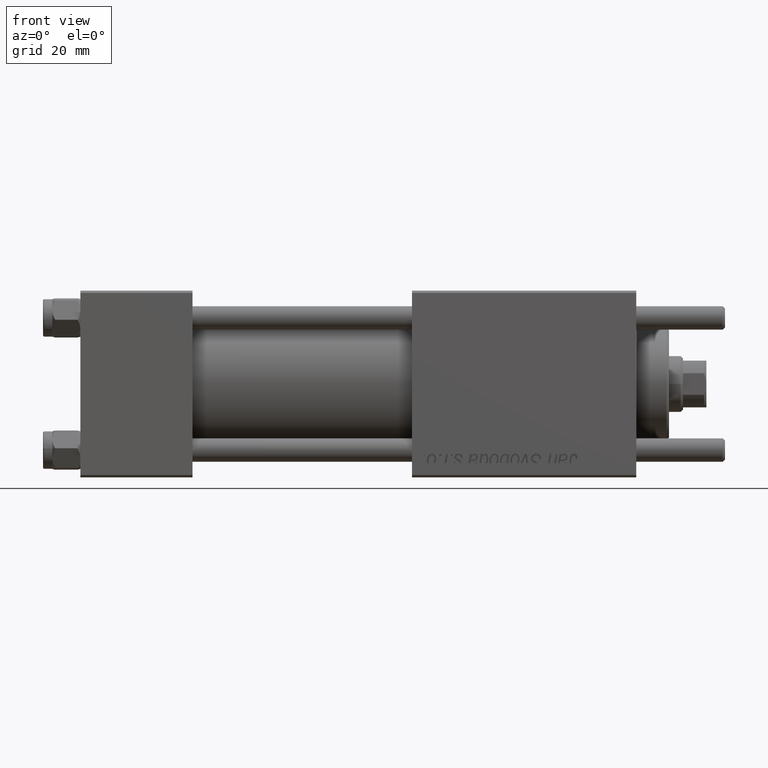
[diagram: clean part render]
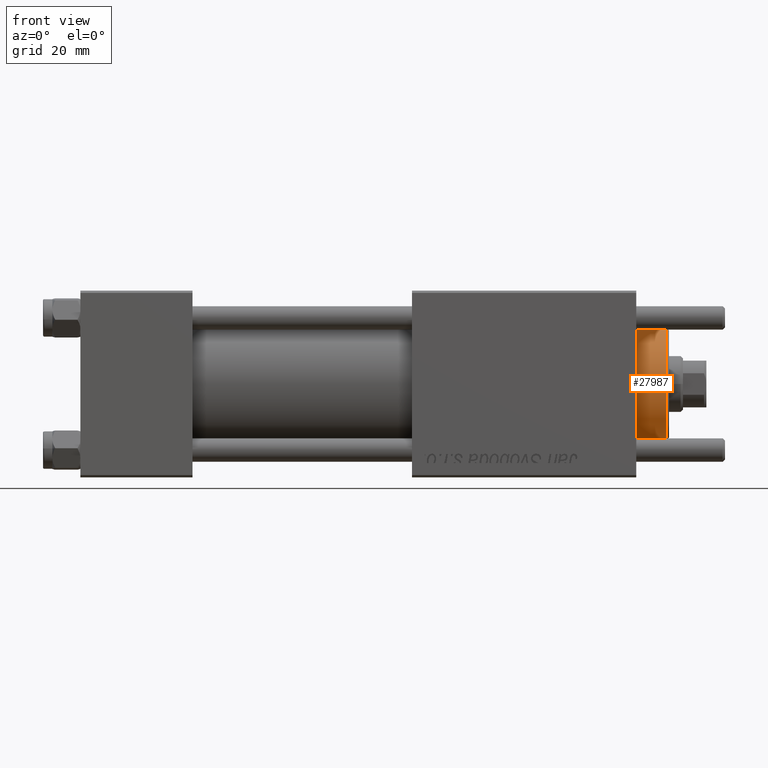
[diagram: same view with one face highlighted and labeled with its STEP entity id]
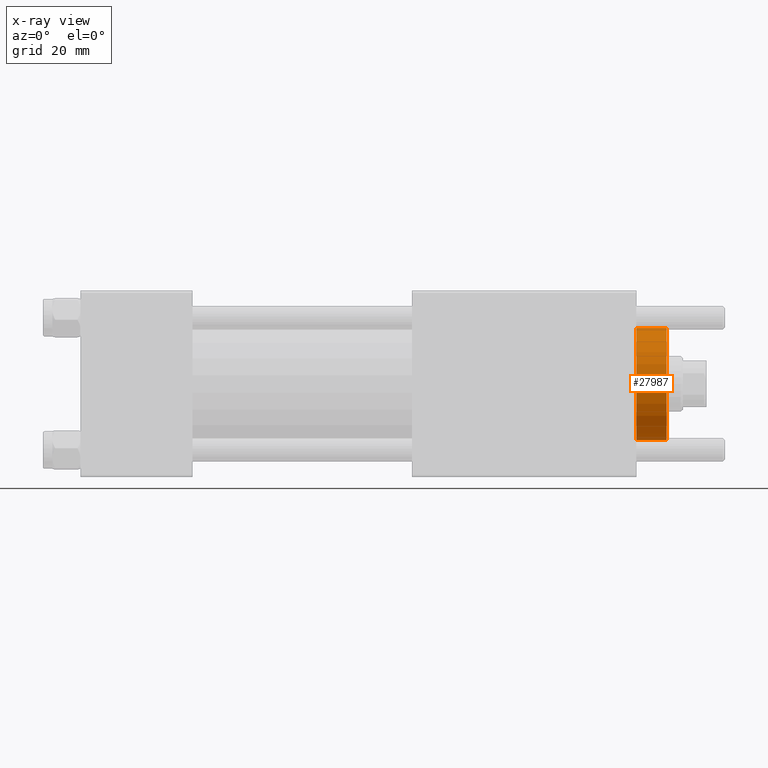
[diagram: x-ray of the same camera — body ghosted, the highlighted face saturated]
A machine part, front view. The second image highlights one B-rep face of the part: STEP entity #27987.
The next image is the same camera in x-ray: the body ghosted, the highlighted face saturated — about 0% of this face is hidden behind the body in this view.
In plain terms, the highlighted cylindrical surface (partial cylindrical patch) has radius 12 mm, axis along (-1, -0, 0).
Its self-contained STEP definition (entity closure, byte-faithful):
#3146 = AXIS2_PLACEMENT_3D ( 'NONE', #8243, #43359, #39050 ) ;
#3514 = FACE_OUTER_BOUND ( 'NONE', #47123, .T. ) ;
#4085 = DIRECTION ( 'NONE',  ( -0.000000000000000000, -0.000000000000000000, -1.000000000000000000 ) ) ;
#4211 = EDGE_CURVE ( 'NONE', #33591, #38277, #31449, .T. ) ;
#4609 = CARTESIAN_POINT ( 'NONE',  ( -12.00000000000000178, 0.000000000000000000, 28.69999999999999929 ) ) ;
#7167 = CARTESIAN_POINT ( 'NONE',  ( 12.00000000000000178, 1.469576158976824144E-15, 35.70000000000000284 ) ) ;
#8101 = CYLINDRICAL_SURFACE ( 'NONE', #23124, 12.00000000000000178 ) ;
#8243 = CARTESIAN_POINT ( 'NONE',  ( 0.000000000000000000, 0.000000000000000000, 28.69999999999999929 ) ) ;
#15339 = VERTEX_POINT ( 'NONE', #40300 ) ;
#19729 = CARTESIAN_POINT ( 'NONE',  ( 0.000000000000000000, 0.000000000000000000, 35.19999999999999574 ) ) ;
#20893 = EDGE_CURVE ( 'NONE', #15339, #33591, #50510, .T. ) ;
#22951 = AXIS2_PLACEMENT_3D ( 'NONE', #19729, #32684, #50228 ) ;
#23124 = AXIS2_PLACEMENT_3D ( 'NONE', #35422, #4085, #47517 ) ;
#26205 = EDGE_CURVE ( 'NONE', #15339, #28042, #47159, .T. ) ;
#26798 = ORIENTED_EDGE ( 'NONE', *, *, #26205, .F. ) ;
#27987 = ADVANCED_FACE ( 'NONE', ( #3514 ), #8101, .T. ) ;
#28042 = VERTEX_POINT ( 'NONE', #45214 ) ;
#31449 = LINE ( 'NONE', #53891, #35784 ) ;
#32684 = DIRECTION ( 'NONE',  ( 0.000000000000000000, 0.000000000000000000, -1.000000000000000000 ) ) ;
#33591 = VERTEX_POINT ( 'NONE', #42861 ) ;
#35422 = CARTESIAN_POINT ( 'NONE',  ( 0.000000000000000000, 0.000000000000000000, 35.70000000000000284 ) ) ;
#35784 = VECTOR ( 'NONE', #48999, 1000.000000000000000 ) ;
#37345 = ORIENTED_EDGE ( 'NONE', *, *, #4211, .T. ) ;
#38277 = VERTEX_POINT ( 'NONE', #4609 ) ;
#38535 = DIRECTION ( 'NONE',  ( -0.000000000000000000, -0.000000000000000000, -1.000000000000000000 ) ) ;
#39050 = DIRECTION ( 'NONE',  ( 1.000000000000000000, 0.000000000000000000, 0.000000000000000000 ) ) ;
#40210 = EDGE_CURVE ( 'NONE', #38277, #28042, #42660, .T. ) ;
#40300 = CARTESIAN_POINT ( 'NONE',  ( 12.00000000000000178, 1.469576158976824144E-15, 35.19999999999999574 ) ) ;
#42382 = VECTOR ( 'NONE', #38535, 1000.000000000000000 ) ;
#42660 = CIRCLE ( 'NONE', #3146, 12.00000000000000178 ) ;
#42861 = CARTESIAN_POINT ( 'NONE',  ( -12.00000000000000178, 0.000000000000000000, 35.19999999999999574 ) ) ;
#43359 = DIRECTION ( 'NONE',  ( 0.000000000000000000, 0.000000000000000000, 1.000000000000000000 ) ) ;
#45214 = CARTESIAN_POINT ( 'NONE',  ( 12.00000000000000178, 1.469576158976824144E-15, 28.69999999999999929 ) ) ;
#47123 = EDGE_LOOP ( 'NONE', ( #26798, #51724, #37345, #47447 ) ) ;
#47159 = LINE ( 'NONE', #7167, #42382 ) ;
#47447 = ORIENTED_EDGE ( 'NONE', *, *, #40210, .T. ) ;
#47517 = DIRECTION ( 'NONE',  ( -1.000000000000000000, 0.000000000000000000, 0.000000000000000000 ) ) ;
#48999 = DIRECTION ( 'NONE',  ( -0.000000000000000000, -0.000000000000000000, -1.000000000000000000 ) ) ;
#50228 = DIRECTION ( 'NONE',  ( 1.000000000000000000, 0.000000000000000000, 0.000000000000000000 ) ) ;
#50510 = CIRCLE ( 'NONE', #22951, 12.00000000000000178 ) ;
#51724 = ORIENTED_EDGE ( 'NONE', *, *, #20893, .T. ) ;
#53891 = CARTESIAN_POINT ( 'NONE',  ( -12.00000000000000178, 0.000000000000000000, 35.70000000000000284 ) ) ;